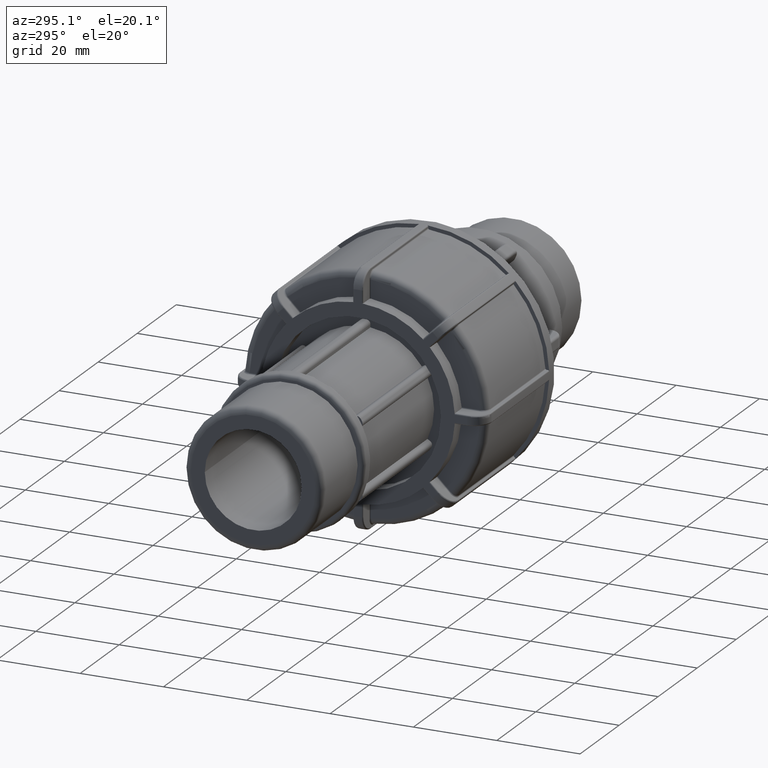
[diagram: clean part render]
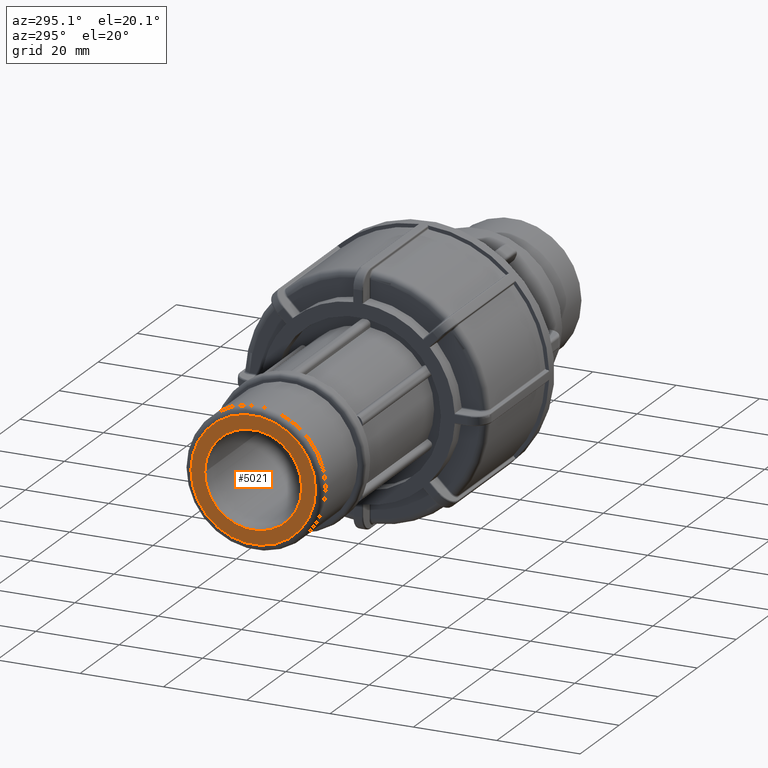
[diagram: same view with one face highlighted and labeled with its STEP entity id]
A machine part, auxiliary view. The second image highlights one B-rep face of the part: STEP entity #5021.
In plain terms, the highlighted planar face has unit normal (-1, 0, 0).
Its self-contained STEP definition (entity closure, byte-faithful):
#61=FACE_BOUND('',#794,.T.);
#155=PLANE('',#5597);
#482=FACE_OUTER_BOUND('',#793,.T.);
#793=EDGE_LOOP('',(#4577));
#794=EDGE_LOOP('',(#4578));
#1873=CIRCLE('',#5595,14.96205);
#1875=CIRCLE('',#5598,11.63715);
#2342=VERTEX_POINT('',#10037);
#2344=VERTEX_POINT('',#10042);
#3090=EDGE_CURVE('',#2342,#2342,#1873,.T.);
#3092=EDGE_CURVE('',#2344,#2344,#1875,.T.);
#4577=ORIENTED_EDGE('',*,*,#3090,.F.);
#4578=ORIENTED_EDGE('',*,*,#3092,.T.);
#5021=ADVANCED_FACE('',(#482,#61),#155,.T.);
#5595=AXIS2_PLACEMENT_3D('',#10038,#7065,#7066);
#5597=AXIS2_PLACEMENT_3D('',#10041,#7069,#7070);
#5598=AXIS2_PLACEMENT_3D('',#10043,#7071,#7072);
#7065=DIRECTION('center_axis',(1.,0.,0.));
#7066=DIRECTION('ref_axis',(0.,-1.,1.83697019872103E-16));
#7069=DIRECTION('center_axis',(-1.,0.,0.));
#7070=DIRECTION('ref_axis',(0.,0.,1.));
#7071=DIRECTION('center_axis',(1.,0.,0.));
#7072=DIRECTION('ref_axis',(0.,0.,-1.));
#10037=CARTESIAN_POINT('',(-134.,14.96205,-9.16161332059133E-16));
#10038=CARTESIAN_POINT('Origin',(-134.,0.,0.));
#10041=CARTESIAN_POINT('Origin',(-134.,16.6245,0.));
#10042=CARTESIAN_POINT('',(-134.,11.63715,0.));
#10043=CARTESIAN_POINT('Origin',(-134.,0.,0.));